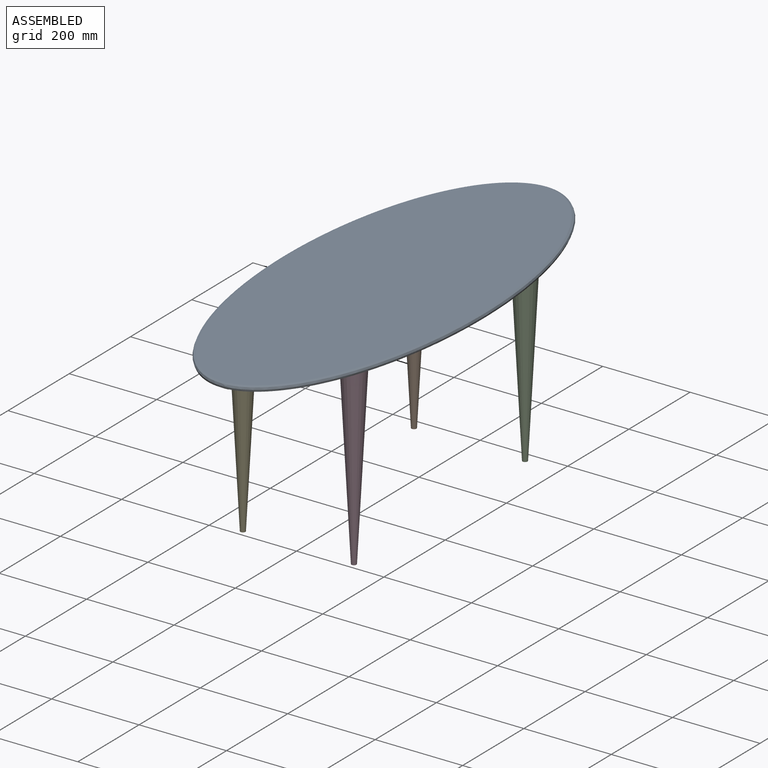
[diagram: assembled view]
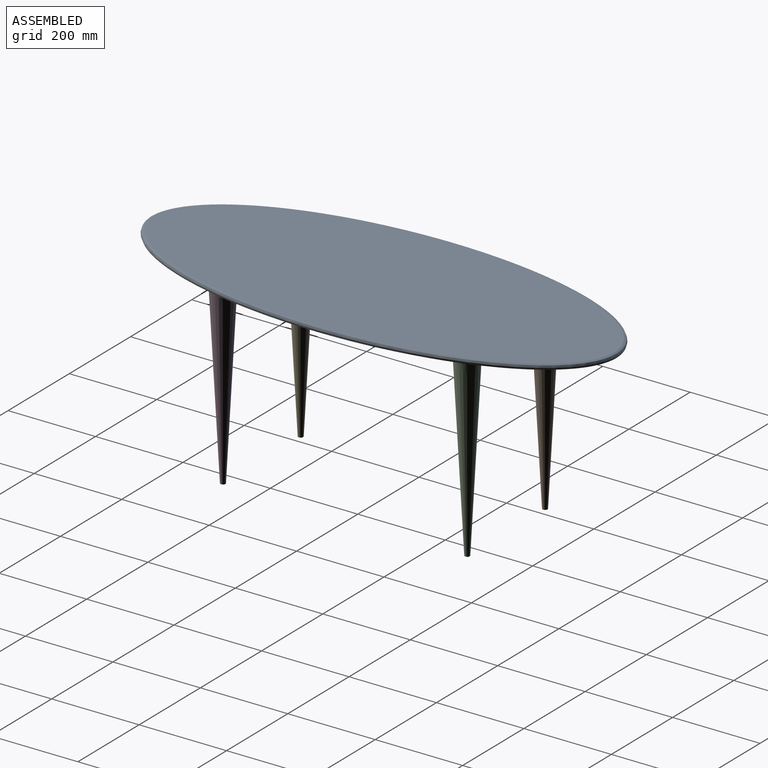
[diagram: assembled view, second angle]
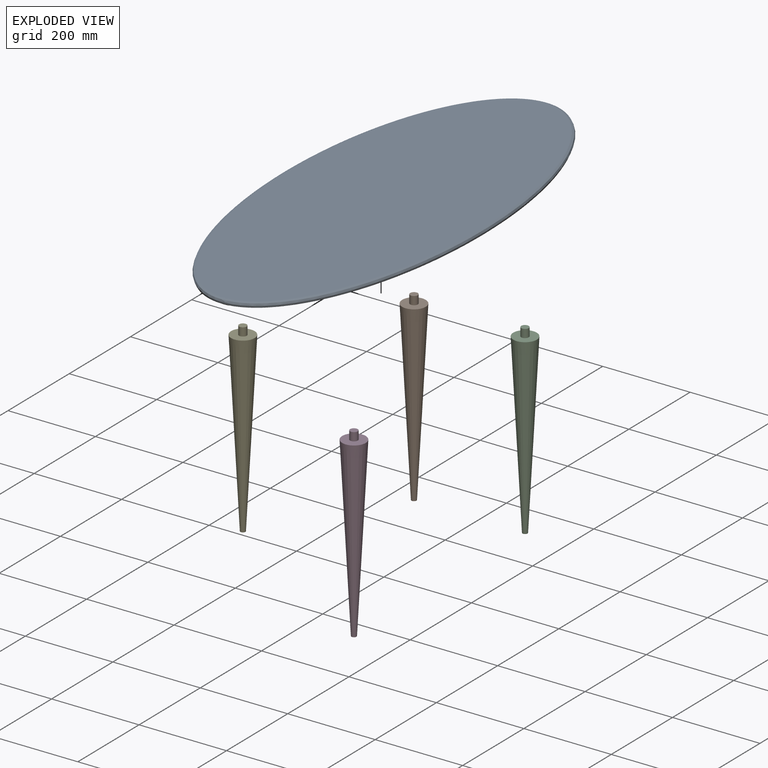
[diagram: exploded view]
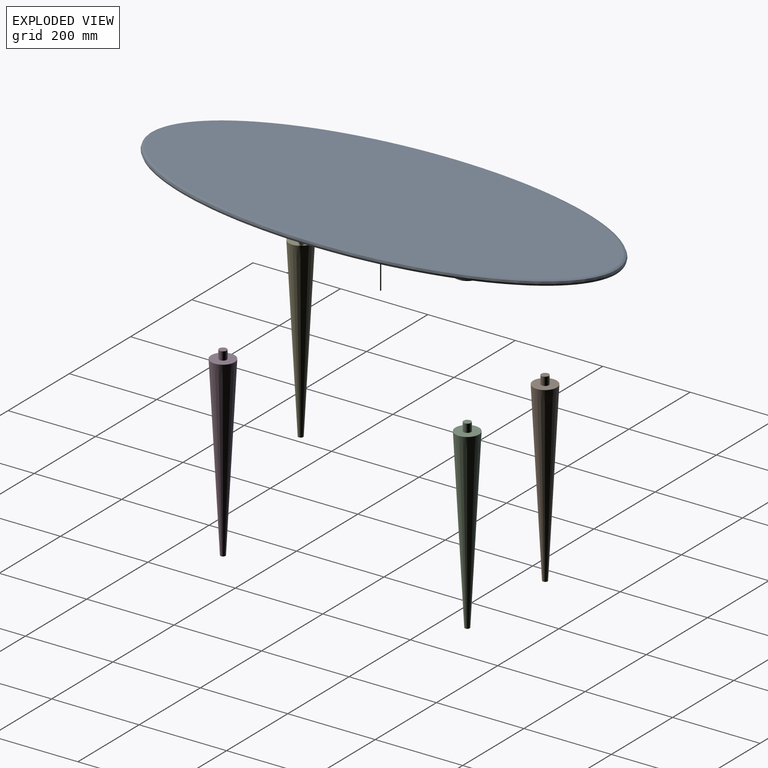
[diagram: exploded view, second angle]
ASSEMBLY  parts=5 mates=4
PART A: 20 faces, bbox 457.2x1066.8x45.3 mm
  f0: plane 1054.11x444.54mm, normal (0,0,1), area 367207mm2, adj f10
  f1: plane 1054.11x444.54mm, normal (0,0,-1), area 340573.2mm2, adj f6,f7,f8,f9,f11
  f2: plane 53.98x53.98mm, normal (0,0,-1), area 2048.6mm2, adj f9,f18
  f3: plane 53.98x53.98mm, normal (0,0,-1), area 2048.6mm2, adj f7,f16
  f4: plane 53.98x53.98mm, normal (0,0,-1), area 2048.6mm2, adj f6,f14
  f5: plane 53.98x53.98mm, normal (0,0,-1), area 2048.6mm2, adj f8,f12
  f6: torus R=46.04mm, axis (0,0,-1), area 6375.6mm2, adj f1,f4
  f7: torus R=46.04mm, axis (0,0,-1), area 6375.6mm2, adj f1,f3
  f8: torus R=46.04mm, axis (0,0,-1), area 6375.6mm2, adj f1,f5
  f9: torus R=46.04mm, axis (0,0,-1), area 6375.6mm2, adj f1,f2
  f10: bspline ~1066.82x457.24mm, area 24698.6mm2, adj f0,f11
  f11: bspline ~1066.82x457.24mm, area 24698.6mm2, adj f1,f10
  f12: cylinder r=8.73mm len=19.05mm, axis (0,0,-1), area 1045.1mm2, adj f5,f13
  f13: plane 17.46x17.46mm, normal (0,0,-1), area 239.5mm2, adj f12
  f14: cylinder r=8.73mm len=19.05mm, axis (0,0,-1), area 1045.1mm2, adj f4,f15
  f15: plane 17.46x17.46mm, normal (0,0,-1), area 239.5mm2, adj f14
  f16: cylinder r=8.73mm len=19.05mm, axis (0,0,-1), area 1045.1mm2, adj f3,f17
  f17: plane 17.46x17.46mm, normal (0,0,-1), area 239.5mm2, adj f16
  f18: cylinder r=8.73mm len=19.05mm, axis (0,0,-1), area 1045.1mm2, adj f2,f19
  f19: plane 17.46x17.46mm, normal (0,0,-1), area 239.5mm2, adj f18
PART B: 5 faces, bbox 54x54x425.5 mm
  f0: cone r=26.99mm half-angle=3deg, axis (0,0,1), area 41776.7mm2, adj f1,f2
  f1: plane 11.38x11.38mm, normal (0,0,-1), area 101.7mm2, adj f0
  f2: plane 53.98x53.98mm, normal (0,0,1), area 2048.6mm2, adj f0,f3
  f3: cylinder r=8.73mm len=19.05mm, axis (0,0,-1), area 1045.1mm2, adj f2,f4
  f4: plane 17.46x17.46mm, normal (0,0,1), area 239.5mm2, adj f3
PART C: same geometry as B
PART D: same geometry as B
PART E: same geometry as B
PLACE A at identity
PLACE B t=(-127,279.4,0)mm
PLACE C t=(127,279.4,0)mm
PLACE D t=(127,-279.4,0)mm
PLACE E t=(-127,-279.4,0)mm
MATE fastened C.f3 <-> A.f6  axis (0,0,1) through (127,279.4,19.05)mm
MATE fastened B.f3 <-> A.f7  axis (0,0,1) through (-127,279.4,19.05)mm
MATE fastened E.f3 <-> A.f8  axis (0,0,1) through (-127,-279.4,19.05)mm
MATE fastened D.f3 <-> A.f9  axis (0,0,1) through (127,-279.4,19.05)mm
